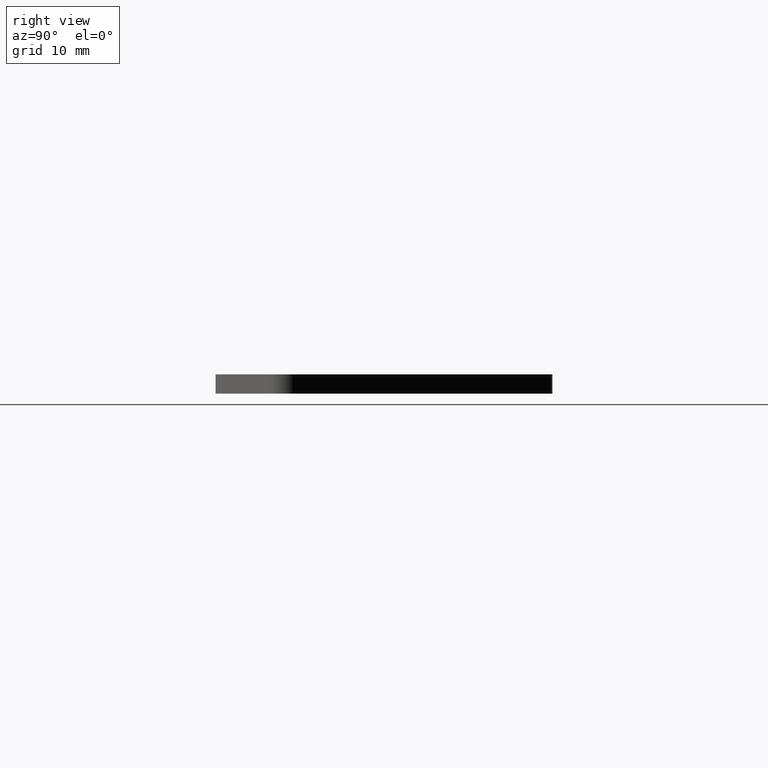
[diagram: clean part render]
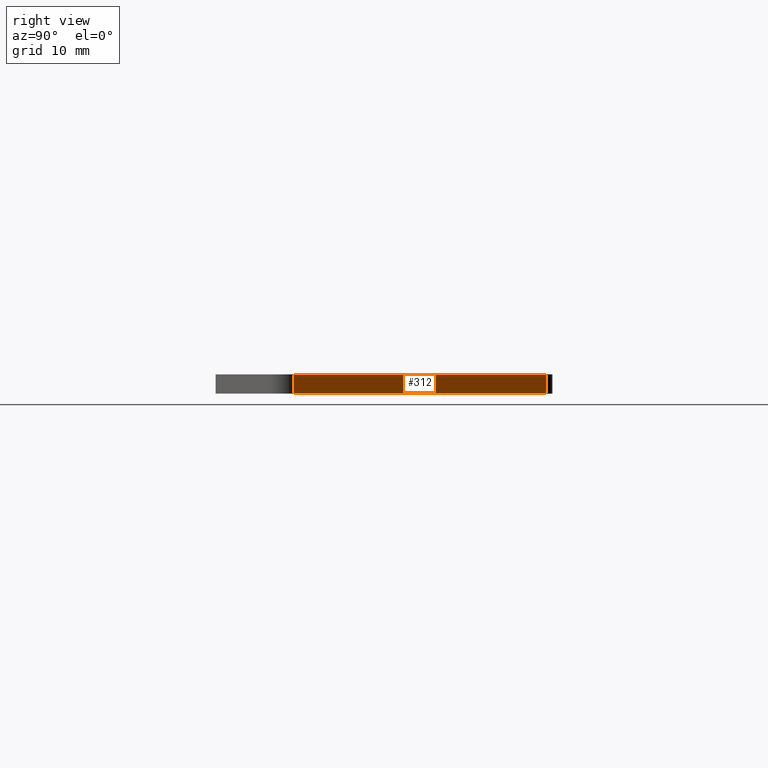
[diagram: same view with one face highlighted and labeled with its STEP entity id]
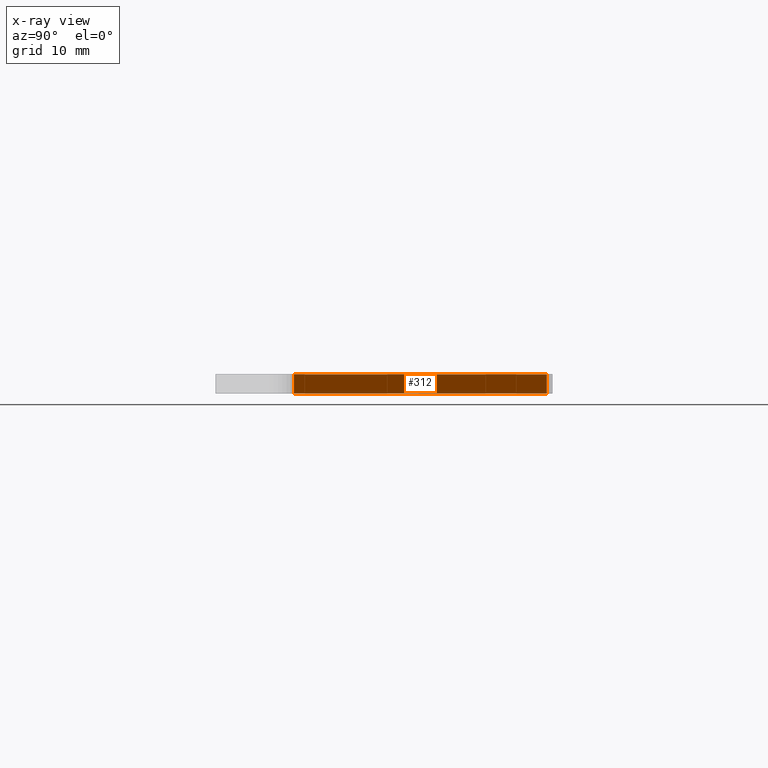
[diagram: x-ray of the same camera — body ghosted, the highlighted face saturated]
A machine part, right view. The second image highlights one B-rep face of the part: STEP entity #312.
The next image is the same camera in x-ray: the body ghosted, the highlighted face saturated — about 0% of this face is hidden behind the body in this view.
In plain terms, the highlighted planar face has unit normal (0.7071, 0.7071, 0).
Its self-contained STEP definition (entity closure, byte-faithful):
#15=PLANE('',#341);
#24=LINE('',#485,#47);
#25=LINE('',#488,#48);
#26=LINE('',#490,#49);
#27=LINE('',#491,#50);
#47=VECTOR('',#394,3.);
#48=VECTOR('',#397,55.7573593128806);
#49=VECTOR('',#398,55.7573593128806);
#50=VECTOR('',#399,3.);
#86=FACE_OUTER_BOUND('',#107,.T.);
#107=EDGE_LOOP('',(#228,#229,#230,#231));
#154=VERTEX_POINT('',#479);
#156=VERTEX_POINT('',#483);
#157=VERTEX_POINT('',#487);
#158=VERTEX_POINT('',#489);
#186=EDGE_CURVE('',#154,#156,#24,.T.);
#187=EDGE_CURVE('',#154,#157,#25,.T.);
#188=EDGE_CURVE('',#158,#156,#26,.T.);
#189=EDGE_CURVE('',#157,#158,#27,.T.);
#228=ORIENTED_EDGE('',*,*,#187,.F.);
#229=ORIENTED_EDGE('',*,*,#186,.T.);
#230=ORIENTED_EDGE('',*,*,#188,.F.);
#231=ORIENTED_EDGE('',*,*,#189,.F.);
#312=ADVANCED_FACE('',(#86),#15,.T.);
#341=AXIS2_PLACEMENT_3D('',#486,#395,#396);
#394=DIRECTION('',(0.,0.,1.));
#395=DIRECTION('center_axis',(0.707106781186546,0.707106781186549,0.));
#396=DIRECTION('ref_axis',(-0.707106781186549,0.707106781186546,0.));
#397=DIRECTION('',(0.707106781186549,-0.707106781186546,0.));
#398=DIRECTION('',(-0.707106781186549,0.707106781186546,0.));
#399=DIRECTION('',(0.,0.,1.));
#479=CARTESIAN_POINT('',(55.7506642551201,53.8597483068202,0.));
#483=CARTESIAN_POINT('',(55.7506642551201,53.8597483068202,3.));
#485=CARTESIAN_POINT('',(55.7506642551201,53.8597483068202,0.));
#486=CARTESIAN_POINT('Origin',(95.177071126313,14.4333414356274,0.));
#487=CARTESIAN_POINT('',(95.177071126313,14.4333414356274,0.));
#488=CARTESIAN_POINT('',(55.7506642551201,53.8597483068202,0.));
#489=CARTESIAN_POINT('',(95.177071126313,14.4333414356274,3.));
#490=CARTESIAN_POINT('',(55.7506642551201,53.8597483068202,3.));
#491=CARTESIAN_POINT('',(95.177071126313,14.4333414356274,0.));